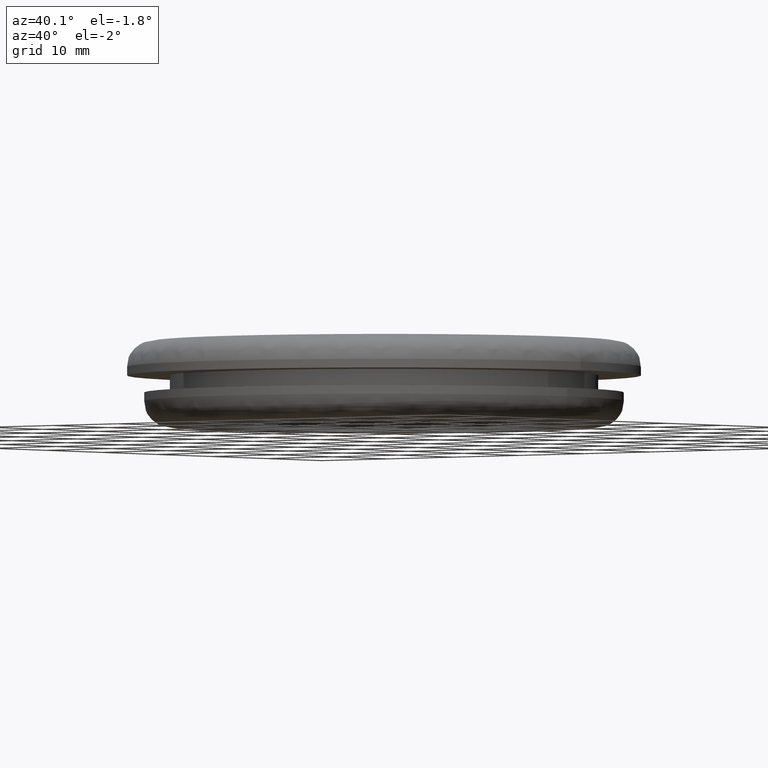
[diagram: clean part render]
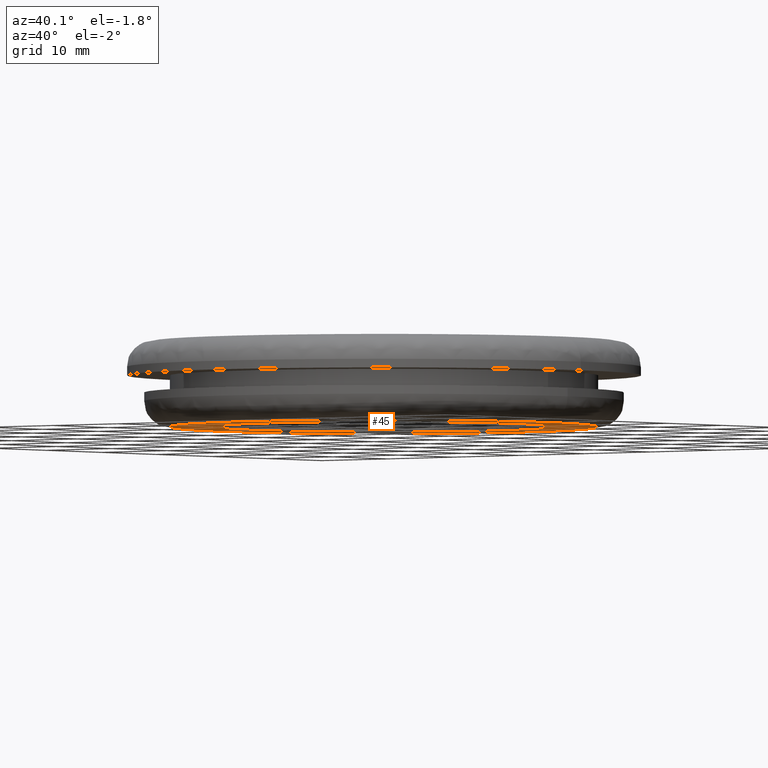
[diagram: same view with one face highlighted and labeled with its STEP entity id]
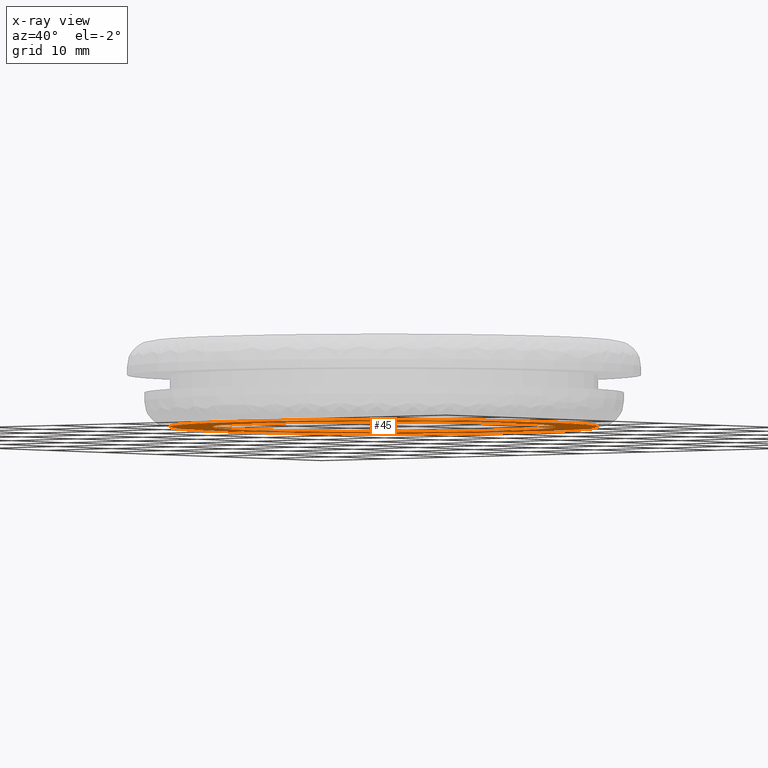
[diagram: x-ray of the same camera — body ghosted, the highlighted face saturated]
A machine part, auxiliary view. The second image highlights one B-rep face of the part: STEP entity #45.
The next image is the same camera in x-ray: the body ghosted, the highlighted face saturated — about 0% of this face is hidden behind the body in this view.
In plain terms, the highlighted planar face has unit normal (0, 0, 1).
Its self-contained STEP definition (entity closure, byte-faithful):
#45=ADVANCED_FACE('',(#114,#115),#113,.F.);
#113=PLANE('',#295);
#114=FACE_OUTER_BOUND('',#296,.T.);
#115=FACE_BOUND('',#297,.T.);
#292=CARTESIAN_POINT('',(-3.25000000000E+01,-5.19615242271E+01,-1.00000000000E+01));
#293=DIRECTION('',(0.00000000000E+00,0.00000000000E+00,1.00000000000E+00));
#294=DIRECTION('',(1.00000000000E+00,0.00000000000E+00,-0.00000000000E+00));
#295=AXIS2_PLACEMENT_3D('',#292,#293,#294);
#296=EDGE_LOOP('',(#468,#469));
#297=EDGE_LOOP('',(#470,#471));
#468=ORIENTED_EDGE('',*,*,#544,.T.);
#469=ORIENTED_EDGE('',*,*,#545,.T.);
#470=ORIENTED_EDGE('',*,*,#546,.F.);
#471=ORIENTED_EDGE('',*,*,#547,.F.);
#544=EDGE_CURVE('',#678,#679,#680,.T.);
#545=EDGE_CURVE('',#679,#678,#686,.T.);
#546=EDGE_CURVE('',#692,#693,#694,.T.);
#547=EDGE_CURVE('',#693,#692,#700,.T.);
#678=VERTEX_POINT('',#898);
#679=VERTEX_POINT('',#899);
#680=CIRCLE('',#903,2.50000000000E+01);
#686=CIRCLE('',#907,2.50000000000E+01);
#692=VERTEX_POINT('',#908);
#693=VERTEX_POINT('',#909);
#694=CIRCLE('',#913,2.00000000000E+01);
#700=CIRCLE('',#917,2.00000000000E+01);
#898=CARTESIAN_POINT('',(-2.50000000000E+01,0.00000000000E+00,-1.00000000000E+01));
#899=CARTESIAN_POINT('',(2.50000000000E+01,-1.18423789293E-15,-1.00000000000E+01));
#900=CARTESIAN_POINT('',(-1.19371179608E-12,0.00000000000E+00,-1.00000000000E+01));
#901=DIRECTION('',(-0.00000000000E+00,0.00000000000E+00,-1.00000000000E+00));
#902=DIRECTION('',(-1.00000000000E+00,-1.22460635382E-16,0.00000000000E+00));
#903=AXIS2_PLACEMENT_3D('',#900,#901,#902);
#904=CARTESIAN_POINT('',(-1.19371179608E-12,0.00000000000E+00,-1.00000000000E+01));
#905=DIRECTION('',(-0.00000000000E+00,0.00000000000E+00,-1.00000000000E+00));
#906=DIRECTION('',(-1.00000000000E+00,-1.22460635382E-16,0.00000000000E+00));
#907=AXIS2_PLACEMENT_3D('',#904,#905,#906);
#908=CARTESIAN_POINT('',(2.00000000000E+01,0.00000000000E+00,-1.00000000000E+01));
#909=CARTESIAN_POINT('',(-2.00000000000E+01,0.00000000000E+00,-1.00000000000E+01));
#910=CARTESIAN_POINT('',(-1.19371179608E-12,0.00000000000E+00,-1.00000000000E+01));
#911=DIRECTION('',(-0.00000000000E+00,0.00000000000E+00,-1.00000000000E+00));
#912=DIRECTION('',(-1.00000000000E+00,-1.22460635382E-16,0.00000000000E+00));
#913=AXIS2_PLACEMENT_3D('',#910,#911,#912);
#914=CARTESIAN_POINT('',(-1.19371179608E-12,0.00000000000E+00,-1.00000000000E+01));
#915=DIRECTION('',(-0.00000000000E+00,0.00000000000E+00,-1.00000000000E+00));
#916=DIRECTION('',(-1.00000000000E+00,-1.22460635382E-16,0.00000000000E+00));
#917=AXIS2_PLACEMENT_3D('',#914,#915,#916);